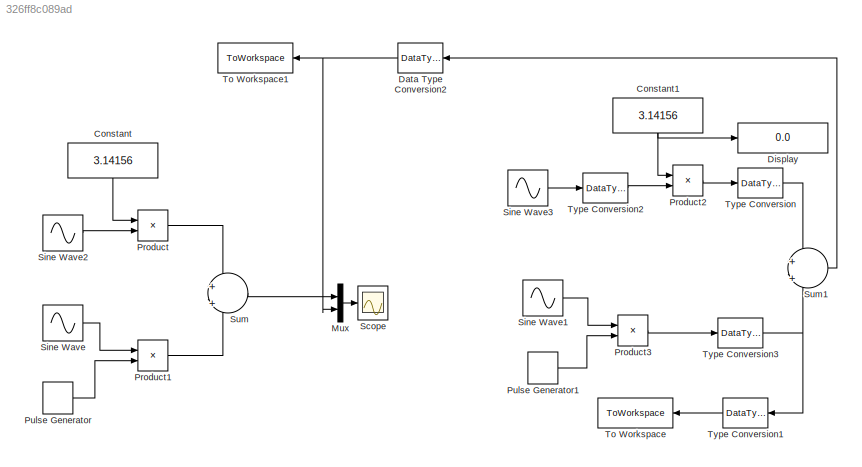
MODEL slx_326ff8c089ad
KIND model
BLOCK [Constant] Constant
  OutDataTypeStr = double
  SampleTime = 1/100e6
  Value = 3.14156
  VectorParams1D = off
BLOCK [Constant] Constant1
  OutDataTypeStr = fixdt(1,9,6)
  SampleTime = 1/100e6
  Value = 3.14156
BLOCK [DataTypeConversion] Data Type Conversion2
  OutDataTypeStr = double
  RndMeth = Floor
  SaturateOnIntegerOverflow = off
BLOCK [Display] Display
  Decimation = 1
  Format = long
  Lockdown = off
  Ports = [1]
BLOCK [Mux] Mux
  DisplayOption = bar
  Inputs = 2
  Ports = [2, 1]
BLOCK [Product] Product
  InputSameDT = off
  OutDataTypeStr = Inherit: Inherit via internal rule
  Ports = [2, 1]
  SaturateOnIntegerOverflow = off
BLOCK [Product] Product1
  InputSameDT = off
  OutDataTypeStr = Inherit: Inherit via internal rule
  Ports = [2, 1]
  SaturateOnIntegerOverflow = off
BLOCK [Product] Product2
  InputSameDT = off
  OutDataTypeStr = Inherit: Inherit via internal rule
  Ports = [2, 1]
  SaturateOnIntegerOverflow = off
BLOCK [Product] Product3
  InputSameDT = off
  OutDataTypeStr = Inherit: Inherit via internal rule
  Ports = [2, 1]
  SaturateOnIntegerOverflow = off
BLOCK [DiscretePulseGenerator] Pulse Generator
  Period = 100
  Ports = [0, 1]
  PulseWidth = 50
  SampleTime = 1/100e6
BLOCK [DiscretePulseGenerator] Pulse Generator1
  Period = 100
  Ports = [0, 1]
  PulseWidth = 50
  SampleTime = 1/100e6
BLOCK [Scope] Scope
  DataFormat = StructureWithTime
  Floating = off
  LimitDataPoints = off
  NumInputPorts = 1
  Ports = [1]
  SampleTime = 0
  ShowLegends = off
  TimeRange = 7.000000000000062e-05
  YMax = 4
  YMin = -3
  ZoomMode = xonly
BLOCK [Sin] Sine Wave
  Amplitude = 0.9
  Frequency = 2*pi*1e6
  Ports = [0, 1]
  SampleTime = 1/100e6
BLOCK [Sin] Sine Wave1
  Amplitude = 0.9
  Frequency = 2*pi*1e6
  Ports = [0, 1]
  SampleTime = 1/100e6
BLOCK [Sin] Sine Wave2
  Frequency = 2*pi*2e6
  Ports = [0, 1]
  SampleTime = 1/100e6
BLOCK [Sin] Sine Wave3
  Frequency = 2*pi*2e6
  Ports = [0, 1]
  SampleTime = 1/100e6
BLOCK [Sum] Sum
  IconShape = round
  InputSameDT = off
  Inputs = +|+
  OutDataTypeStr = Inherit: Inherit via internal rule
  Ports = [2, 1]
  SaturateOnIntegerOverflow = off
BLOCK [Sum] Sum1
  IconShape = round
  InputSameDT = off
  Inputs = +|+
  OutDataTypeStr = Inherit: Inherit via internal rule
  Ports = [2, 1]
  SaturateOnIntegerOverflow = off
BLOCK [ToWorkspace] To Workspace
  MaxDataPoints = inf
  Ports = [1]
  SampleTime = -1
  SaveFormat = Timeseries
  VariableName = Input_Vector
BLOCK [ToWorkspace] To Workspace1
  MaxDataPoints = inf
  Ports = [1]
  SampleTime = -1
  SaveFormat = Timeseries
  VariableName = Output_Vector
BLOCK [DataTypeConversion] Type Conversion
  OutDataTypeStr = fixdt(1,17,13)
  RndMeth = Floor
  SaturateOnIntegerOverflow = off
BLOCK [DataTypeConversion] Type Conversion1
  OutDataTypeStr = double
  RndMeth = Floor
  SaturateOnIntegerOverflow = off
BLOCK [DataTypeConversion] Type Conversion2
  OutDataTypeStr = fixdt(1,12,11)
  RndMeth = Floor
  SaturateOnIntegerOverflow = off
BLOCK [DataTypeConversion] Type Conversion3
  OutDataTypeStr = fixdt(1,14,13)
  RndMeth = Floor
  SaturateOnIntegerOverflow = off
NET Constant1:1 -> Display:1, Product2:1
LINE Constant:1 -> Product:1
NET Data Type Conversion2:1 -> Mux:2, To Workspace1:1
LINE Mux:1 -> Scope:1
LINE Product1:1 -> Sum:2
LINE Product2:1 -> Type Conversion:1
LINE Product3:1 -> Type Conversion3:1
LINE Product:1 -> Sum:1
LINE Pulse Generator1:1 -> Product3:2
LINE Pulse Generator:1 -> Product1:2
LINE Sine Wave1:1 -> Product3:1
LINE Sine Wave2:1 -> Product:2
LINE Sine Wave3:1 -> Type Conversion2:1
LINE Sine Wave:1 -> Product1:1
LINE Sum1:1 -> Data Type Conversion2:1
LINE Sum:1 -> Mux:1
LINE Type Conversion1:1 -> To Workspace:1
LINE Type Conversion2:1 -> Product2:2
NET Type Conversion3:1 -> Sum1:2, Type Conversion1:1
LINE Type Conversion:1 -> Sum1:1
note: NET lines group one-source signal fan-out (src -> all destinations, sorted); 1:1 wires keep LINE
